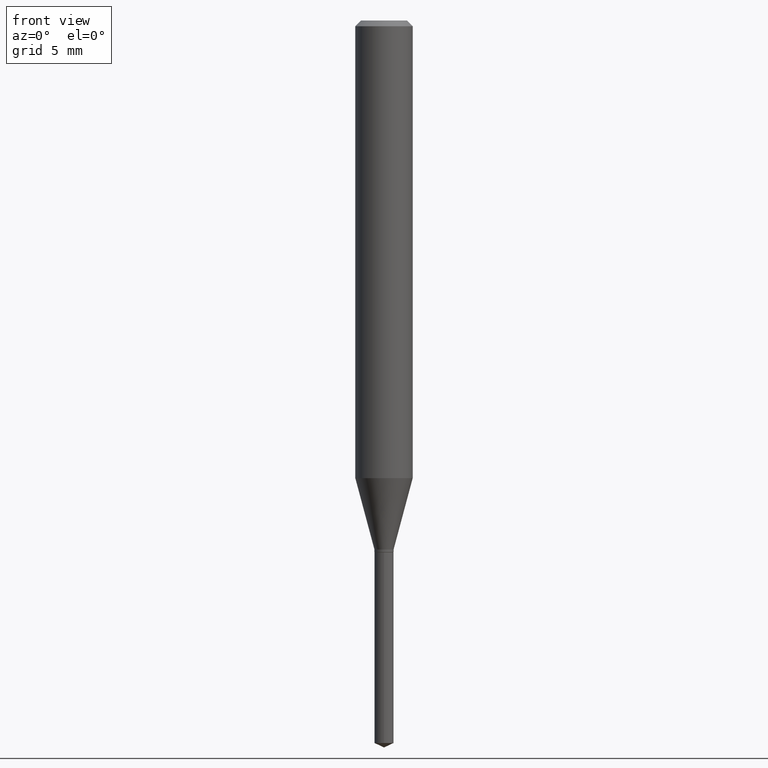
[diagram: clean part render]
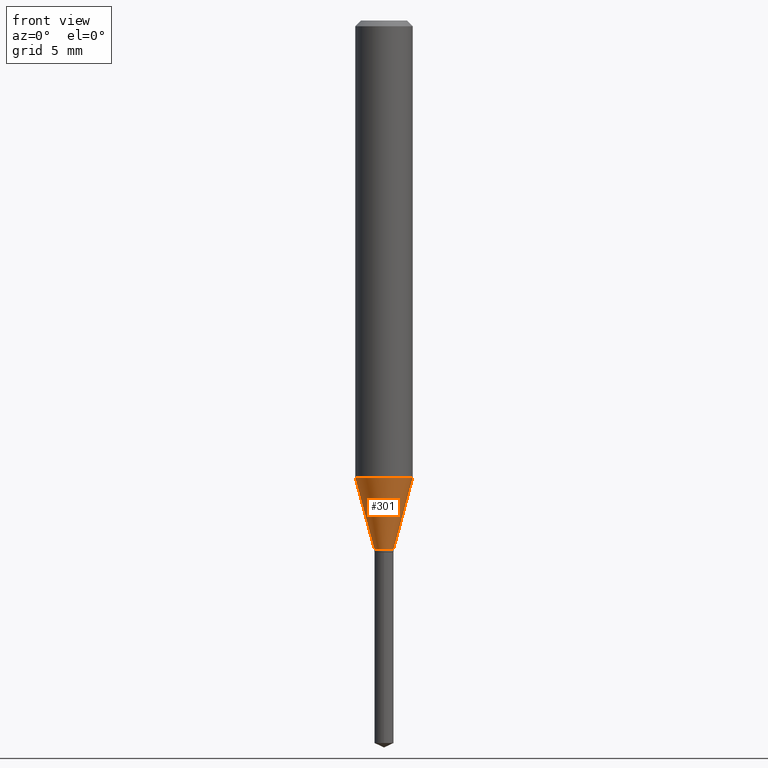
[diagram: same view with one face highlighted and labeled with its STEP entity id]
A machine part, front view. The second image highlights one B-rep face of the part: STEP entity #301.
In plain terms, the highlighted conical surface has half-angle 15 deg.
Its self-contained STEP definition (entity closure, byte-faithful):
#8 = EDGE_LOOP ( 'NONE', ( #316, #427, #355, #350 ) ) ;
#21 = VERTEX_POINT ( 'NONE', #295 ) ;
#26 = DIRECTION ( 'NONE',  ( 0.2588190451025211281, 1.565188264969622954E-15, 0.9659258262890679791 ) ) ;
#42 = FACE_OUTER_BOUND ( 'NONE', #8, .T. ) ;
#46 = EDGE_CURVE ( 'NONE', #21, #431, #82, .T. ) ;
#51 = VECTOR ( 'NONE', #216, 39.37007874015748854 ) ;
#75 = DIRECTION ( 'NONE',  ( -2.445468806185136597E-29, 3.491481338843145583E-15, 1.000000000000000000 ) ) ;
#77 = EDGE_CURVE ( 'NONE', #431, #375, #103, .T. ) ;
#82 = CIRCLE ( 'NONE', #244, 0.01969999999999999876 ) ;
#100 = EDGE_CURVE ( 'NONE', #21, #387, #373, .T. ) ;
#103 = LINE ( 'NONE', #337, #339 ) ;
#124 = AXIS2_PLACEMENT_3D ( 'NONE', #191, #75, #156 ) ;
#130 = CARTESIAN_POINT ( 'NONE',  ( 2.303005088084284954E-29, -3.288080906192655344E-15, -0.9417438007221644591 ) ) ;
#132 = CARTESIAN_POINT ( 'NONE',  ( -0.05905000000000010935, -2.868505420726315851E-15, -0.9417438007221644591 ) ) ;
#142 = DIRECTION ( 'NONE',  ( -2.445468806185136597E-29, 3.491481338843145583E-15, 1.000000000000000000 ) ) ;
#156 = DIRECTION ( 'NONE',  ( 1.000000000000000000, -6.982962677686254878E-15, 0.000000000000000000 ) ) ;
#191 = CARTESIAN_POINT ( 'NONE',  ( 2.662137342413139764E-29, -3.800826585464648242E-15, -1.088600000000000012 ) ) ;
#210 = CARTESIAN_POINT ( 'NONE',  ( 0.05905000000000010935, -3.700424852310029476E-15, -0.9417438007221644591 ) ) ;
#214 = DIRECTION ( 'NONE',  ( 1.000000000000000000, -6.982962677686254878E-15, 0.000000000000000000 ) ) ;
#216 = DIRECTION ( 'NONE',  ( -0.2588190451025211281, 5.211531920934547886E-15, 0.9659258262890679791 ) ) ;
#244 = AXIS2_PLACEMENT_3D ( 'NONE', #443, #142, #214 ) ;
#281 = DIRECTION ( 'NONE',  ( -2.445468806185136597E-29, 3.491481338843145583E-15, 1.000000000000000000 ) ) ;
#295 = CARTESIAN_POINT ( 'NONE',  ( -0.01969999999999999876, -3.670276666134784264E-15, -1.088600000000000012 ) ) ;
#301 = ADVANCED_FACE ( 'NONE', ( #42 ), #399, .T. ) ;
#308 = CIRCLE ( 'NONE', #326, 0.05905000000000010935 ) ;
#315 = CARTESIAN_POINT ( 'NONE',  ( 0.01969999999999999876, -3.938390950215067457E-15, -1.088600000000000012 ) ) ;
#316 = ORIENTED_EDGE ( 'NONE', *, *, #100, .F. ) ;
#326 = AXIS2_PLACEMENT_3D ( 'NONE', #130, #281, #428 ) ;
#337 = CARTESIAN_POINT ( 'NONE',  ( 0.01969999999999999876, -3.938390950215067457E-15, -1.088600000000000012 ) ) ;
#339 = VECTOR ( 'NONE', #26, 39.37007874015748854 ) ;
#350 = ORIENTED_EDGE ( 'NONE', *, *, #420, .F. ) ;
#355 = ORIENTED_EDGE ( 'NONE', *, *, #77, .T. ) ;
#373 = LINE ( 'NONE', #481, #51 ) ;
#375 = VERTEX_POINT ( 'NONE', #210 ) ;
#387 = VERTEX_POINT ( 'NONE', #132 ) ;
#399 = CONICAL_SURFACE ( 'NONE', #124, 0.01969999999999999876, 0.2617993877991498519 ) ;
#420 = EDGE_CURVE ( 'NONE', #387, #375, #308, .T. ) ;
#427 = ORIENTED_EDGE ( 'NONE', *, *, #46, .T. ) ;
#428 = DIRECTION ( 'NONE',  ( 1.000000000000000000, -6.982962677686267499E-15, 0.000000000000000000 ) ) ;
#431 = VERTEX_POINT ( 'NONE', #315 ) ;
#443 = CARTESIAN_POINT ( 'NONE',  ( 2.662137342413139764E-29, -3.800826585464648242E-15, -1.088600000000000012 ) ) ;
#481 = CARTESIAN_POINT ( 'NONE',  ( -0.01969999999999999876, -3.660849666519908145E-15, -1.088600000000000012 ) ) ;